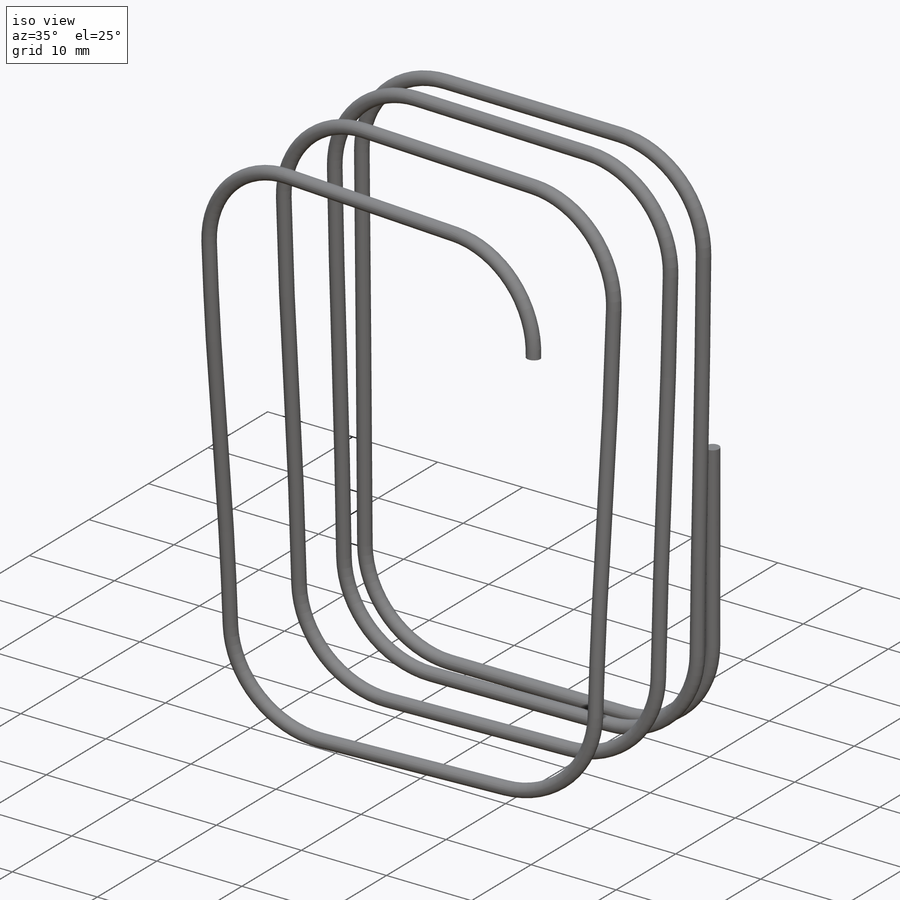
[diagram: iso view]
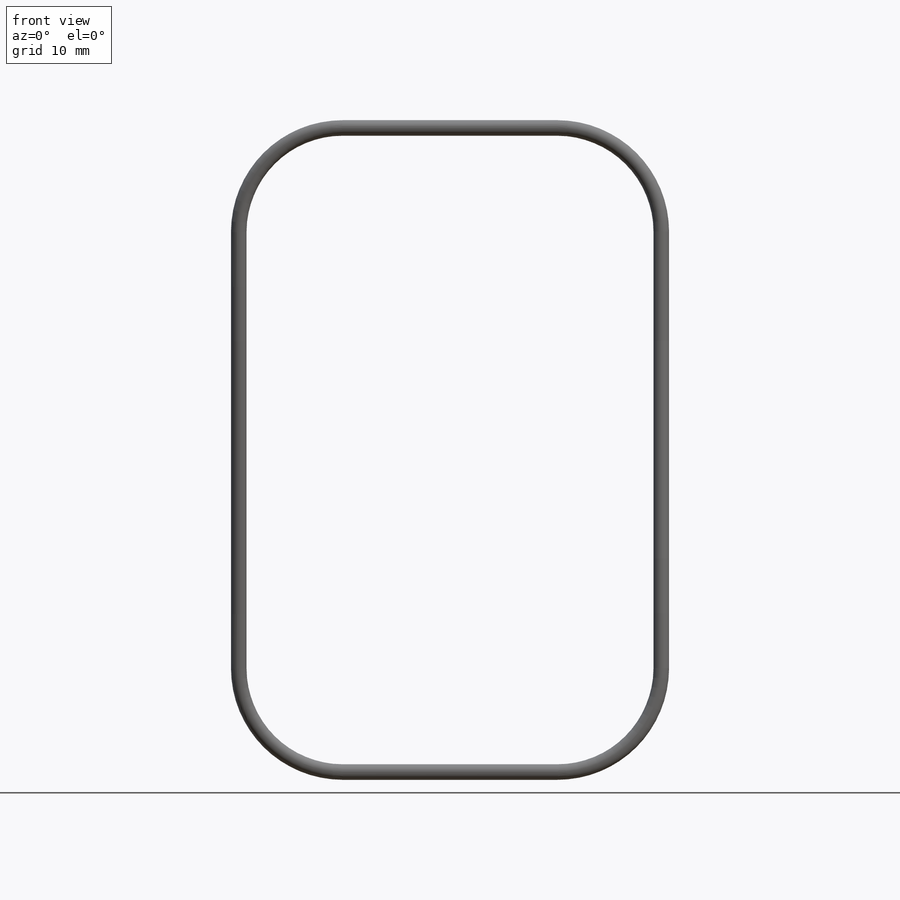
[diagram: front view]
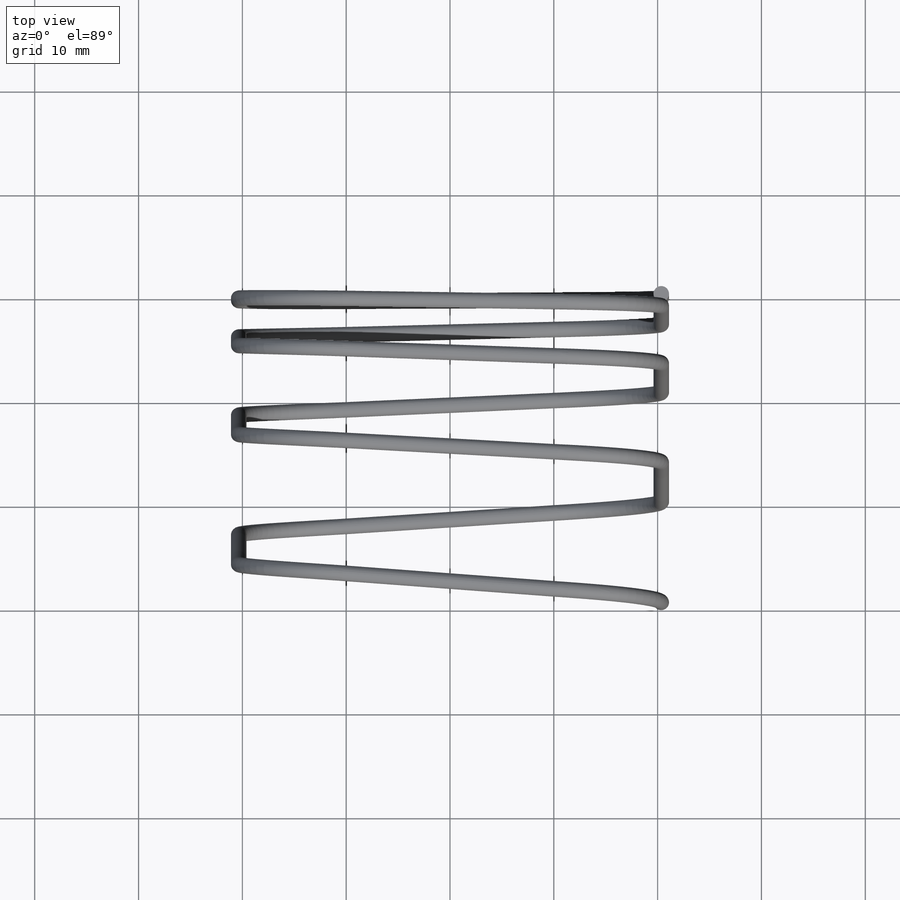
[diagram: top view]
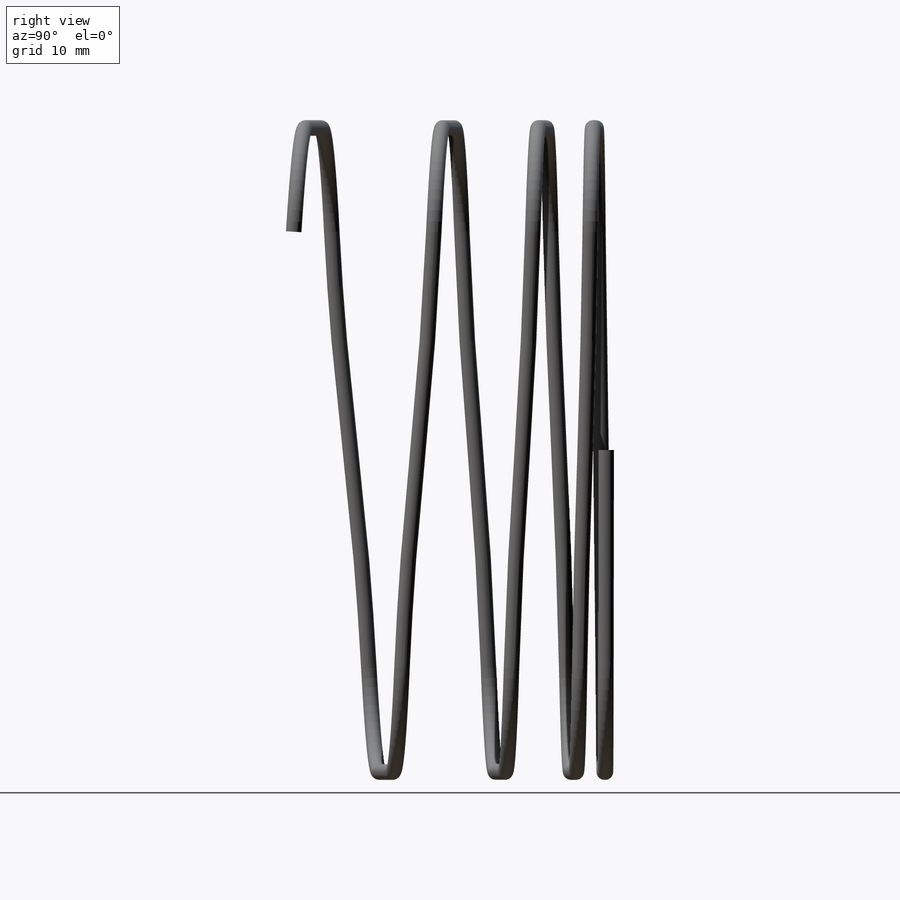
[diagram: right view]
SOLIDWORKS PART (.sldprt)
format: sldprt  version: not decoded by parser v0  size: 1,803,776 bytes
history: native  units: mm
features: plane x5, sketch x5, helix x2, delete_body x2, mirror x2, material x1, sweep x1, boolean_combine x1 (+8 scaffold rows collapsed)
feature tree (27):
  scaffold x8  (default folders/planes/origin — collapsed)
  material  "Materiał <nieokreślony>"
  plane  "Płaszczyzna przednia"
  plane  "Płaszczyzna górna"
  plane  "Płaszczyzna prawa"
  sketch  "Szkic1"  dims[D1=90.0mm]
  helix  "Helisa/Spirala1"  Pitch=0.5mm
  sketch  "Szkic2"  dims[D1=20.0mm]
  helix  "Helisa/Spirala2"  Pitch=0mm
  sketch  "Szkic3"  dims[D1=10.0mm]
  sketch  "Szkic 3D2"
  delete_body  "Obiekt-Usuń1"
  plane  "Płaszczyzna1"
  sketch  "Szkic4"  dims[D1=1.5mm]
  sweep  "Wyciągnięcie po ścieżce2"
  plane  "Płaszczyzna2"
  mirror  "Lustro1"
  mirror  "Lustro2"
  delete_body  "Obiekt-Usuń2"
  boolean_combine  "Połącz1"
decode coverage: 6 of 13 modeling features carry decoded parameters
note: suppression state not decoded; provenance and decode notes live in map.json
